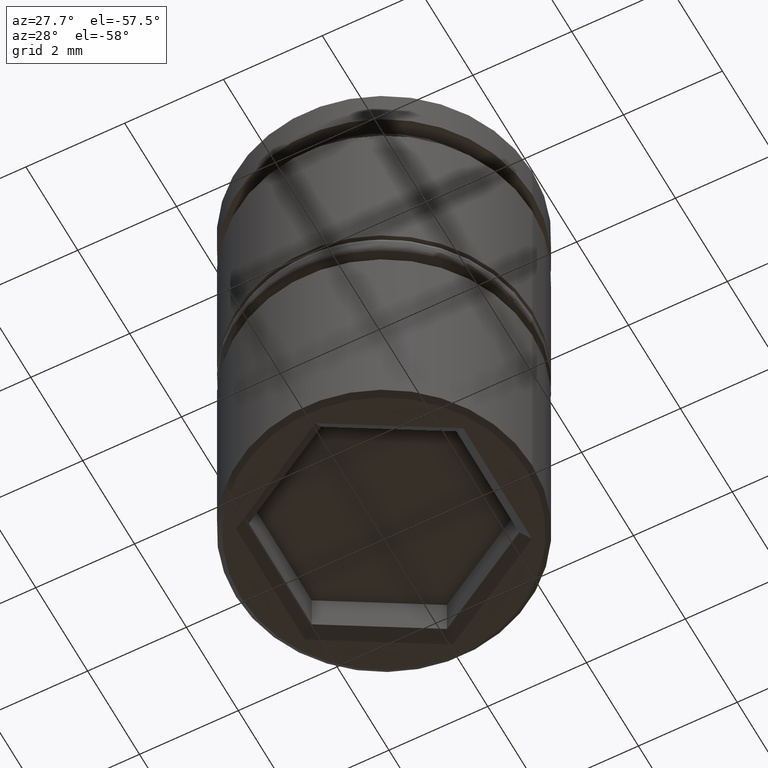
[diagram: clean part render]
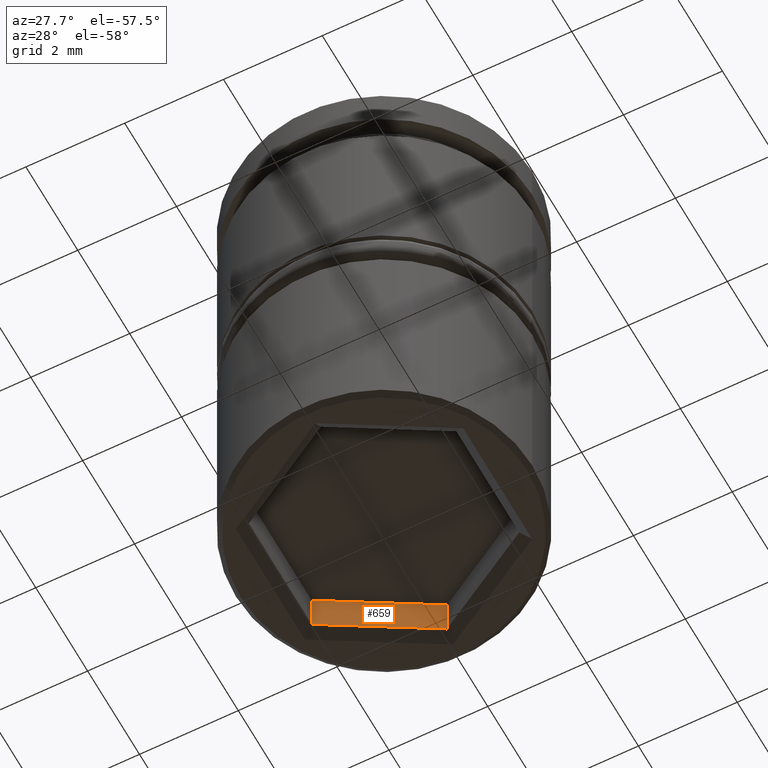
[diagram: same view with one face highlighted and labeled with its STEP entity id]
A machine part, auxiliary view. The second image highlights one B-rep face of the part: STEP entity #659.
In plain terms, the highlighted planar face has unit normal (-0.5, 0.866, 0).
Its self-contained STEP definition (entity closure, byte-faithful):
#26 = LINE ( 'NONE', #465, #925 ) ;
#73 = LINE ( 'NONE', #238, #1031 ) ;
#87 = DIRECTION ( 'NONE',  ( -0.000000000000000000, -0.000000000000000000, -1.000000000000000000 ) ) ;
#110 = CARTESIAN_POINT ( 'NONE',  ( 0.000000000000000000, 2.424871130596428781, -9.000000000000001776 ) ) ;
#175 = LINE ( 'NONE', #542, #912 ) ;
#197 = DIRECTION ( 'NONE',  ( -0.000000000000000000, -0.000000000000000000, -1.000000000000000000 ) ) ;
#238 = CARTESIAN_POINT ( 'NONE',  ( 2.740964040940977875E-16, 2.424871130596428781, -9.799999999999997158 ) ) ;
#244 = ORIENTED_EDGE ( 'NONE', *, *, #262, .F. ) ;
#262 = EDGE_CURVE ( 'NONE', #1163, #560, #1018, .T. ) ;
#281 = VECTOR ( 'NONE', #197, 1000.000000000000000 ) ;
#287 = ORIENTED_EDGE ( 'NONE', *, *, #417, .T. ) ;
#301 = DIRECTION ( 'NONE',  ( 0.8660254037844388186, 0.4999999999999997780, 0.000000000000000000 ) ) ;
#406 = VERTEX_POINT ( 'NONE', #1177 ) ;
#412 = DIRECTION ( 'NONE',  ( -0.8660254037844388186, -0.4999999999999997224, 0.000000000000000000 ) ) ;
#417 = EDGE_CURVE ( 'NONE', #564, #406, #175, .T. ) ;
#465 = CARTESIAN_POINT ( 'NONE',  ( -2.100000000000000977, 1.212435565298214835, -9.000000000000001776 ) ) ;
#474 = ORIENTED_EDGE ( 'NONE', *, *, #545, .F. ) ;
#501 = PLANE ( 'NONE',  #553 ) ;
#542 = CARTESIAN_POINT ( 'NONE',  ( -2.100000000000000977, 1.212435565298214835, -9.000000000000001776 ) ) ;
#545 = EDGE_CURVE ( 'NONE', #564, #1163, #26, .T. ) ;
#553 = AXIS2_PLACEMENT_3D ( 'NONE', #1143, #600, #412 ) ;
#560 = VERTEX_POINT ( 'NONE', #668 ) ;
#564 = VERTEX_POINT ( 'NONE', #919 ) ;
#600 = DIRECTION ( 'NONE',  ( -0.4999999999999997224, 0.8660254037844388186, 0.000000000000000000 ) ) ;
#659 = ADVANCED_FACE ( 'NONE', ( #886 ), #501, .F. ) ;
#668 = CARTESIAN_POINT ( 'NONE',  ( 0.000000000000000000, 2.424871130596428781, -9.799999999999997158 ) ) ;
#679 = EDGE_LOOP ( 'NONE', ( #287, #778, #244, #474 ) ) ;
#778 = ORIENTED_EDGE ( 'NONE', *, *, #922, .T. ) ;
#886 = FACE_OUTER_BOUND ( 'NONE', #679, .T. ) ;
#912 = VECTOR ( 'NONE', #87, 1000.000000000000000 ) ;
#919 = CARTESIAN_POINT ( 'NONE',  ( -2.100000000000000977, 1.212435565298214835, -9.000000000000001776 ) ) ;
#922 = EDGE_CURVE ( 'NONE', #406, #560, #73, .T. ) ;
#925 = VECTOR ( 'NONE', #301, 1000.000000000000114 ) ;
#1018 = LINE ( 'NONE', #110, #281 ) ;
#1031 = VECTOR ( 'NONE', #1061, 1000.000000000000114 ) ;
#1061 = DIRECTION ( 'NONE',  ( 0.8660254037844388186, 0.4999999999999997224, 0.000000000000000000 ) ) ;
#1143 = CARTESIAN_POINT ( 'NONE',  ( -2.100000000000000977, 1.212435565298214835, -9.000000000000001776 ) ) ;
#1160 = CARTESIAN_POINT ( 'NONE',  ( 0.000000000000000000, 2.424871130596428781, -9.000000000000001776 ) ) ;
#1163 = VERTEX_POINT ( 'NONE', #1160 ) ;
#1177 = CARTESIAN_POINT ( 'NONE',  ( -2.100000000000000977, 1.212435565298214835, -9.799999999999997158 ) ) ;